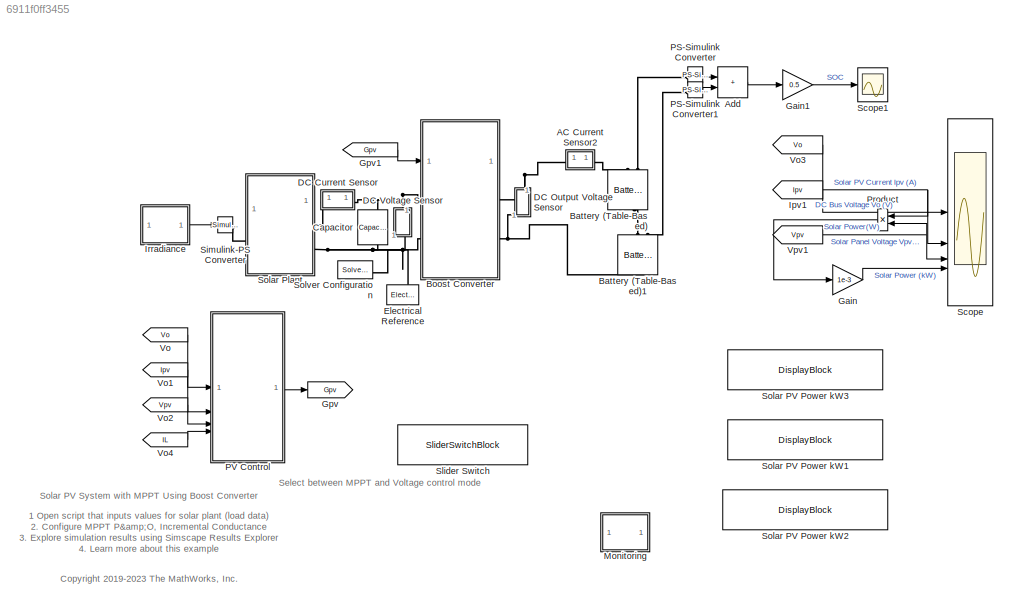
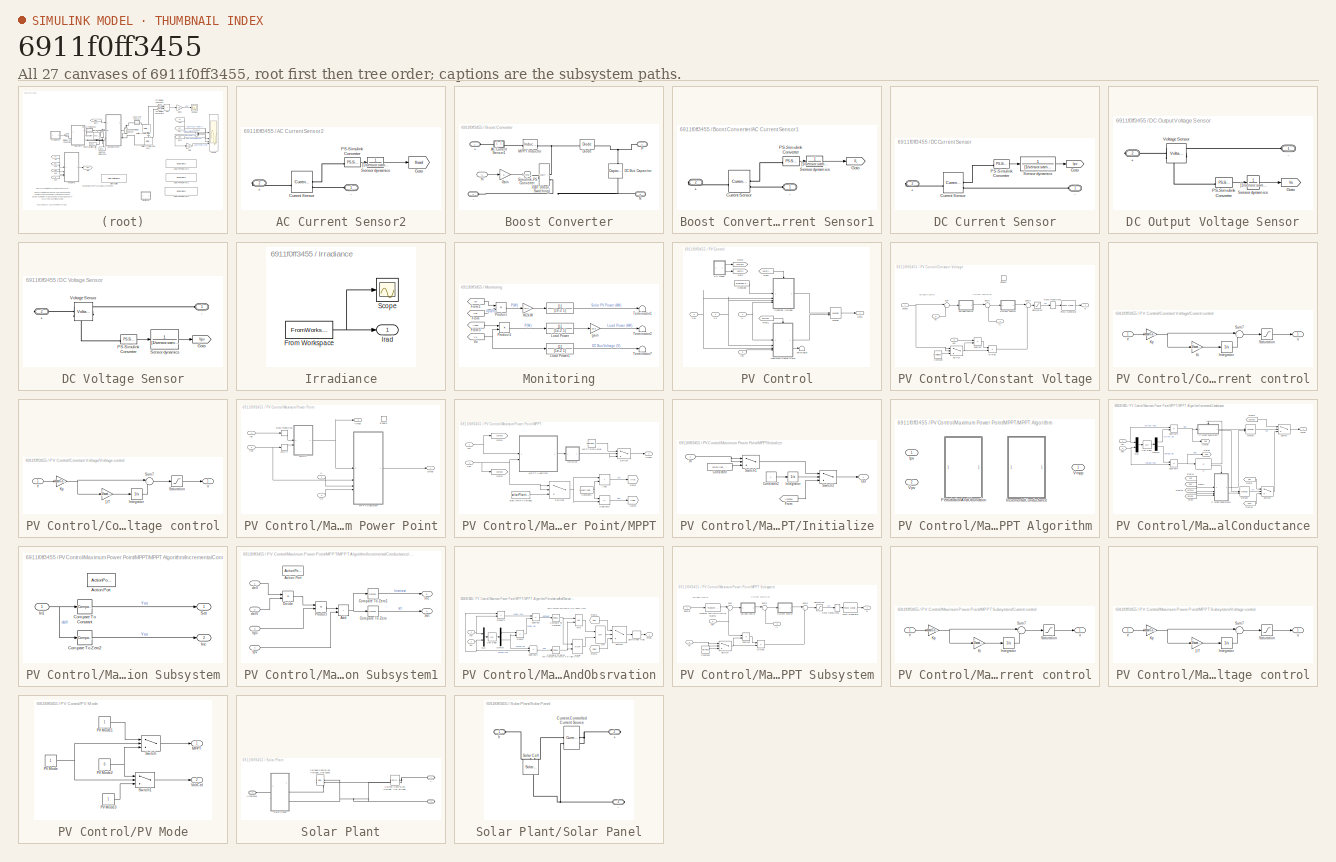
[diagram: thumbnail index - all 27 canvases of the model, root first then tree order]
MODEL slx_6911f0ff3455
KIND model
CONFIG AbsTol = 1e-3
CONFIG EnableMultiTasking = off
CONFIG FixedStep = auto
CONFIG MaxStep = 1/(10*solarPlant.converterSwitchingFrequency)
CONFIG MinStep = auto
CONFIG PreLoadFcn = run('SolarPVMPPTBoostData');
CONFIG RelTol = 1e-3
CONFIG SampleTimeConstraint = Unconstrained
CONFIG SolverName = ode23t
CONFIG StartTime = 0.0
CONFIG StopTime = t_sim2(end)
BLOCK [SubSystem] AC Current Sensor2
  NameLocation = top
BLOCK [PMIOPort] AC Current Sensor2/+
  Port = 2
  Side = Right
BLOCK [PMIOPort] AC Current Sensor2/-
  Side = Left
BLOCK [Reference] AC Current Sensor2/Current Sensor  REF=fl_lib/Electrical/Electrical Sensors/Current Sensor
  SourceBlock = fl_lib/Electrical/Electrical Sensors/Current Sensor
  SourceType = Current Sensor
BLOCK [Goto] AC Current Sensor2/Goto
  GotoTag = Iload
  TagVisibility = global
BLOCK [Reference] AC Current Sensor2/PS-Simulink Converter  REF=nesl_utility/PS-Simulink
Converter
  SourceBlock = nesl_utility/PS-Simulink\nConverter
  SourceType = PS-Simulink\nConverter
BLOCK [TransferFcn] AC Current Sensor2/Sensor dynamics
  Denominator = [1/sensor.samplingFreq 1]
  Numerator = 1
BLOCK [Sum] Add
  IconShape = rectangular
BLOCK [Reference] Battery (Table-Based)  REF=batteryecm_lib/Battery
(Table-Based)
  AttributesFormatString = Valence:U24_24XP
  LibrarySourceBlock = batt_lib/Cells/Battery\n(Table-Based)
  NameLocation = right
  SourceBlock = batteryecm_lib/Battery\n(Table-Based)
  SourceType = Battery\n(Table-Based)
BLOCK [Reference] Battery (Table-Based)1  REF=batteryecm_lib/Battery
(Table-Based)
  AttributesFormatString = Valence:U24_24XP
  LibrarySourceBlock = batt_lib/Cells/Battery\n(Table-Based)
  NameLocation = right
  SourceBlock = batteryecm_lib/Battery\n(Table-Based)
  SourceType = Battery\n(Table-Based)
BLOCK [SubSystem] Boost Converter
  VariantControl = boostCircuit == 1
BLOCK [PMIOPort] Boost Converter/+
  Side = Left
BLOCK [PMIOPort] Boost Converter/-
  Port = 4
  Side = Left
BLOCK [SubSystem] Boost Converter/AC Current Sensor1
  NameLocation = top
BLOCK [PMIOPort] Boost Converter/AC Current Sensor1/+
  Port = 2
  Side = Right
BLOCK [PMIOPort] Boost Converter/AC Current Sensor1/-
  Side = Left
BLOCK [Reference] Boost Converter/AC Current Sensor1/Current Sensor  REF=fl_lib/Electrical/Electrical Sensors/Current Sensor
  SourceBlock = fl_lib/Electrical/Electrical Sensors/Current Sensor
  SourceType = Current Sensor
BLOCK [Goto] Boost Converter/AC Current Sensor1/Goto
  GotoTag = IL
  TagVisibility = global
BLOCK [Reference] Boost Converter/AC Current Sensor1/PS-Simulink Converter  REF=nesl_utility/PS-Simulink
Converter
  SourceBlock = nesl_utility/PS-Simulink\nConverter
  SourceType = PS-Simulink\nConverter
BLOCK [TransferFcn] Boost Converter/AC Current Sensor1/Sensor dynamics
  Denominator = [1/sensor.samplingFreq 1]
  Numerator = 1
BLOCK [Reference] Boost Converter/DC Bus Capacitor  REF=fl_lib/Electrical/Electrical Elements/Capacitor
  NameLocation = left
  SourceBlock = fl_lib/Electrical/Electrical Elements/Capacitor
  SourceType = Capacitor
BLOCK [Reference] Boost Converter/Diode  REF=fl_lib/Electrical/Electrical Elements/Diode
  SourceBlock = fl_lib/Electrical/Electrical Elements/Diode
  SourceType = Diode
BLOCK [Gain] Boost Converter/Gain
  Gain = 5
BLOCK [Reference] Boost Converter/IGBT (Ideal, Switching)  REF=ee_lib/Semiconductors &
Converters/IGBT
(Ideal,
Switching)
  SourceBlock = ee_lib/Semiconductors &\nConverters/IGBT\n(Ideal,\nSwitching)
  SourceType = IGBT\n(Ideal,\nSwitching)
BLOCK [Reference] Boost Converter/MPPT Inductor  REF=ee_lib/Passive/Inductor
  SourceBlock = ee_lib/Passive/Inductor
  SourceType = Inductor
BLOCK [PMIOPort] Boost Converter/N
  Port = 3
  Side = Right
BLOCK [PMIOPort] Boost Converter/P
  Port = 2
  Side = Right
BLOCK [Reference] Boost Converter/Simulink-PS Converter  REF=nesl_utility/Simulink-PS
Converter
  SourceBlock = nesl_utility/Simulink-PS\nConverter
  SourceType = Simulink-PS\nConverter
BLOCK [Inport] Boost Converter/m
BLOCK [Reference] Capacitor  REF=fl_lib/Electrical/Electrical Elements/Capacitor
  NameLocation = left
  SourceBlock = fl_lib/Electrical/Electrical Elements/Capacitor
  SourceType = Capacitor
BLOCK [SubSystem] DC Current Sensor
BLOCK [PMIOPort] DC Current Sensor/+
  Port = 2
  Side = Right
BLOCK [PMIOPort] DC Current Sensor/-
  Side = Left
BLOCK [Reference] DC Current Sensor/Current Sensor  REF=fl_lib/Electrical/Electrical Sensors/Current Sensor
  SourceBlock = fl_lib/Electrical/Electrical Sensors/Current Sensor
  SourceType = Current Sensor
BLOCK [Goto] DC Current Sensor/Goto
  GotoTag = Ipv
  TagVisibility = global
BLOCK [Reference] DC Current Sensor/PS-Simulink Converter  REF=nesl_utility/PS-Simulink
Converter
  SourceBlock = nesl_utility/PS-Simulink\nConverter
  SourceType = PS-Simulink\nConverter
BLOCK [TransferFcn] DC Current Sensor/Sensor dynamics
  Denominator = [1/sensor.samplingFreq 1]
  Numerator = 1
BLOCK [SubSystem] DC Output Voltage Sensor
  NameLocation = left
BLOCK [PMIOPort] DC Output Voltage Sensor/+
  Port = 2
  Side = Right
BLOCK [PMIOPort] DC Output Voltage Sensor/-
  Side = Left
BLOCK [Goto] DC Output Voltage Sensor/Goto
  GotoTag = Vo
  TagVisibility = global
BLOCK [Reference] DC Output Voltage Sensor/PS-Simulink Converter  REF=nesl_utility/PS-Simulink
Converter
  SourceBlock = nesl_utility/PS-Simulink\nConverter
  SourceType = PS-Simulink\nConverter
BLOCK [TransferFcn] DC Output Voltage Sensor/Sensor dynamics
  Denominator = [1/sensor.samplingFreq 1]
  Numerator = 1
BLOCK [Reference] DC Output Voltage Sensor/Voltage Sensor  REF=fl_lib/Electrical/Electrical Sensors/Voltage Sensor
  SourceBlock = fl_lib/Electrical/Electrical Sensors/Voltage Sensor
  SourceType = Voltage Sensor
BLOCK [SubSystem] DC Voltage Sensor
  NameLocation = left
BLOCK [PMIOPort] DC Voltage Sensor/+
  Port = 2
  Side = Right
BLOCK [PMIOPort] DC Voltage Sensor/-
  Side = Left
BLOCK [Goto] DC Voltage Sensor/Goto
  GotoTag = Vpv
  TagVisibility = global
BLOCK [Reference] DC Voltage Sensor/PS-Simulink Converter  REF=nesl_utility/PS-Simulink
Converter
  SourceBlock = nesl_utility/PS-Simulink\nConverter
  SourceType = PS-Simulink\nConverter
BLOCK [TransferFcn] DC Voltage Sensor/Sensor dynamics
  Denominator = [1/sensor.samplingFreq 1]
  Numerator = 1
BLOCK [Reference] DC Voltage Sensor/Voltage Sensor  REF=fl_lib/Electrical/Electrical Sensors/Voltage Sensor
  SourceBlock = fl_lib/Electrical/Electrical Sensors/Voltage Sensor
  SourceType = Voltage Sensor
BLOCK [Reference] Electrical Reference  REF=fl_lib/Electrical/Electrical Elements/Electrical Reference
  NameLocation = left
  SourceBlock = fl_lib/Electrical/Electrical Elements/Electrical Reference
  SourceType = Electrical Reference
BLOCK [Gain] Gain
  Gain = 1e-3
BLOCK [Gain] Gain1
  Gain = 0.5
BLOCK [Goto] Gpv
  GotoTag = Gpv
  TagVisibility = global
BLOCK [From] Gpv1
  GotoTag = Gpv
  TagVisibility = global
BLOCK [From] Ipv1
  GotoTag = Ipv
  TagVisibility = global
BLOCK [SubSystem] Irradiance
BLOCK [FromWorkspace] Irradiance/From Workspace
  SampleTime = 0.01
  VariableName = irradiance_input
BLOCK [Outport] Irradiance/Irad
BLOCK [Scope] Irradiance/Scope
  ActiveDisplayYMaximum = 1117.4641717921102
  ActiveDisplayYMinimum = -124.16268575467888
  Floating = off
  GraphicalSettings = {"Style":{"BackgroundColor":[0.12941176470588237,0.12941176470588237,0.12941176470588237],"AxesColor":[0.07058823529411765,0.07058823529411765,0.07058823529411765],"LabelsColor":[0.8509803921568627,0.8509803921568627,0.8509803921568627],"PreserveColors":false,"Visible":[true],"LineStyle":["-"],"LineWidth":[1.5],"BarWidth":[0.9],"LineColor":["auto"],"LineFaceAlpha":[1],"LineEdgeAlpha":[1],"Marker":...<+2052ch>
  MultipleDisplayCache = [{"MaxYLimMag":1117.4641717921102,"MaxYLimReal":1117.4641717921102,"MinYLimMag":0,"MinYLimReal":-124.16268575467888,"PlotAsMagnitudePhase":false,"ShowGrid":true,"ShowLegend":false,"Title":"%<SignalLabel>","YLabel":""}]
  NumInputPorts = 1
  ScopeFrameLocation = window
  WasSavedAsWebScope = on
  WindowPosition = [676.000000,590.000000,608.000000,456.000000,]
BLOCK [SubSystem] Monitoring
BLOCK [TransferFcn] Monitoring/  
  Denominator = [1e-2 1]
BLOCK [From] Monitoring/From
  GotoTag = Vpv
  TagVisibility = global
BLOCK [From] Monitoring/From1
  GotoTag = Ipv
  TagVisibility = global
BLOCK [From] Monitoring/From3
  GotoTag = Iload
  TagVisibility = global
BLOCK [TransferFcn] Monitoring/Load Power
  Denominator = [1e-2 1]
BLOCK [TransferFcn] Monitoring/Load Power1
  Denominator = [1e-2 1]
BLOCK [Product] Monitoring/Product
BLOCK [Product] Monitoring/Product1
BLOCK [Terminator] Monitoring/Terminator1
BLOCK [Terminator] Monitoring/Terminator2
BLOCK [Terminator] Monitoring/Terminator7
BLOCK [From] Monitoring/Vo
  GotoTag = Vo
  TagVisibility = global
BLOCK [Gain] Monitoring/W2kW
  Gain = 1e-3
BLOCK [Gain] Monitoring/gain
  Gain = 1e-3
BLOCK [Reference] PS-Simulink Converter  REF=nesl_utility/PS-Simulink
Converter
  SourceBlock = nesl_utility/PS-Simulink\nConverter
  SourceType = PS-Simulink\nConverter
BLOCK [Reference] PS-Simulink Converter1  REF=nesl_utility/PS-Simulink
Converter
  SourceBlock = nesl_utility/PS-Simulink\nConverter
  SourceType = PS-Simulink\nConverter
BLOCK [SubSystem] PV Control
BLOCK [Constant] PV Control/Constant
  Value = dcVoltage.avgDCVoltage
BLOCK [SubSystem] PV Control/Constant Voltage
BLOCK [Constant] PV Control/Constant Voltage/Constant
  Value = dcVoltage.avgDCVoltage
BLOCK [SubSystem] PV Control/Constant Voltage/Current control
BLOCK [Integrator] PV Control/Constant Voltage/Current control/Integrator
  LimitOutput = on
  LowerSaturationLimit = -1.5
  UpperSaturationLimit = 1.5
BLOCK [Gain] PV Control/Constant Voltage/Current control/Ki
  Gain = 1/boostController.mppCurrentZeroTimeConst
BLOCK [Gain] PV Control/Constant Voltage/Current control/Kp
  Gain = boostController.mppCurrentGain
BLOCK [Saturate] PV Control/Constant Voltage/Current control/Saturation
  LowerLimit = -1.5
  UpperLimit = 1.5
BLOCK [Sum] PV Control/Constant Voltage/Current control/Sum7
  Inputs = |++
BLOCK [Inport] PV Control/Constant Voltage/Current control/e
BLOCK [Outport] PV Control/Constant Voltage/Current control/u
  VectorParamsAs1DForOutWhenUnconnected = off
BLOCK [Product] PV Control/Constant Voltage/Divide
  Inputs = */
BLOCK [EnablePort] PV Control/Constant Voltage/Enable
  StatesWhenEnabling = reset
BLOCK [Outport] PV Control/Constant Voltage/G
BLOCK [Inport] PV Control/Constant Voltage/IL
  NameLocation = top
  Port = 4
BLOCK [Reference] PV Control/Constant Voltage/PWM Generator  REF=eePwmGenerator/PWM Generator
  SourceBlock = eePwmGenerator/PWM Generator
  SourceType = PWM Generator
BLOCK [RateTransition] PV Control/Constant Voltage/Rate Transition1
  OutPortSampleTime = 1/(10*solarPlant.converterSwitchingFrequency)
BLOCK [Saturate] PV Control/Constant Voltage/Saturation
  LowerLimit = 0
  UpperLimit = 1
BLOCK [Sum] PV Control/Constant Voltage/Subtract
  IconShape = rectangular
  Inputs = +-
BLOCK [Sum] PV Control/Constant Voltage/Sum
  Inputs = |+-
BLOCK [Sum] PV Control/Constant Voltage/Sum2
  Inputs = |+-
BLOCK [Sum] PV Control/Constant Voltage/Sum3
  Inputs = |+-
BLOCK [Switch] PV Control/Constant Voltage/Switch
  Criteria = u2 > Threshold
  InputSameDT = off
  SaturateOnIntegerOverflow = off
  Threshold = dcVoltage.avgDCVoltage*0.7
BLOCK [Inport] PV Control/Constant Voltage/Vconst
BLOCK [Inport] PV Control/Constant Voltage/Vo 
  Port = 3
BLOCK [SubSystem] PV Control/Constant Voltage/Voltage control
BLOCK [Gain] PV Control/Constant Voltage/Voltage control/1//T
  Gain = 1/boostController.mppVoltageZeroTimeConst
BLOCK [Integrator] PV Control/Constant Voltage/Voltage control/Integrator
  LimitOutput = on
  LowerSaturationLimit = boostController.mppVoltageLoopMin
  UpperSaturationLimit = boostController.mppVoltageLoopMax
BLOCK [Gain] PV Control/Constant Voltage/Voltage control/Kp
  Gain = boostController.mppVoltageGain
BLOCK [Saturate] PV Control/Constant Voltage/Voltage control/Saturation
  LowerLimit = boostController.mppVoltageLoopMin
  UpperLimit = boostController.mppVoltageLoopMax
BLOCK [Sum] PV Control/Constant Voltage/Voltage control/Sum7
  Inputs = |++
BLOCK [Inport] PV Control/Constant Voltage/Voltage control/e
BLOCK [Outport] PV Control/Constant Voltage/Voltage control/u
  VectorParamsAs1DForOutWhenUnconnected = off
BLOCK [Inport] PV Control/Constant Voltage/Vpv
  Port = 2
BLOCK [From] PV Control/From
  GotoTag = VoltCtrl
BLOCK [From] PV Control/From1
  GotoTag = pvMPPT
BLOCK [Outport] PV Control/Gate
BLOCK [Goto] PV Control/Goto
  GotoTag = VoltCtrl
BLOCK [Goto] PV Control/Goto1
  GotoTag = pvMPPT
BLOCK [Inport] PV Control/IL
  Port = 4
BLOCK [Inport] PV Control/Ipv
  Port = 2
BLOCK [SubSystem] PV Control/Maximum Power Point
BLOCK [EnablePort] PV Control/Maximum Power Point/Enable
  StatesWhenEnabling = reset
BLOCK [Outport] PV Control/Maximum Power Point/Gmpp
BLOCK [Inport] PV Control/Maximum Power Point/IL 
BLOCK [Inport] PV Control/Maximum Power Point/Ipv
  Port = 4
BLOCK [SubSystem] PV Control/Maximum Power Point/MPPT
BLOCK [SubSystem] PV Control/Maximum Power Point/MPPT Subsystem
  TreatAsAtomicUnit = on
BLOCK [Constant] PV Control/Maximum Power Point/MPPT Subsystem/Constant
  Value = solarPlant.startMPPTValue
BLOCK [SubSystem] PV Control/Maximum Power Point/MPPT Subsystem/Current control
BLOCK [Integrator] PV Control/Maximum Power Point/MPPT Subsystem/Current control/Integrator
  InitialCondition = 1
  LimitOutput = on
  LowerSaturationLimit = -0.5
  UpperSaturationLimit = 1
BLOCK [Gain] PV Control/Maximum Power Point/MPPT Subsystem/Current control/Ki
  Gain = 1/boostController.mppCurrentZeroTimeConst
BLOCK [Gain] PV Control/Maximum Power Point/MPPT Subsystem/Current control/Kp
  Gain = boostController.mppCurrentGain
BLOCK [Saturate] PV Control/Maximum Power Point/MPPT Subsystem/Current control/Saturation
  LowerLimit = -0.3
  UpperLimit = 1
BLOCK [Sum] PV Control/Maximum Power Point/MPPT Subsystem/Current control/Sum7
  Inputs = |++
BLOCK [Inport] PV Control/Maximum Power Point/MPPT Subsystem/Current control/e
BLOCK [Outport] PV Control/Maximum Power Point/MPPT Subsystem/Current control/u
  VectorParamsAs1DForOutWhenUnconnected = off
BLOCK [Product] PV Control/Maximum Power Point/MPPT Subsystem/Divide
  Inputs = */
BLOCK [Outport] PV Control/Maximum Power Point/MPPT Subsystem/G
BLOCK [Inport] PV Control/Maximum Power Point/MPPT Subsystem/IL
  NameLocation = top
  Port = 3
BLOCK [Reference] PV Control/Maximum Power Point/MPPT Subsystem/PWM Generator  REF=eePwmGenerator/PWM Generator
  SourceBlock = eePwmGenerator/PWM Generator
  SourceType = PWM Generator
BLOCK [RateTransition] PV Control/Maximum Power Point/MPPT Subsystem/Rate Transition1
  OutPortSampleTime = 1/(10*solarPlant.converterSwitchingFrequency)
BLOCK [Saturate] PV Control/Maximum Power Point/MPPT Subsystem/Saturation
  LowerLimit = 0
  UpperLimit = 1
BLOCK [Sum] PV Control/Maximum Power Point/MPPT Subsystem/Subtract
  IconShape = rectangular
  Inputs = -+
BLOCK [Sum] PV Control/Maximum Power Point/MPPT Subsystem/Sum
  Inputs = |+-
BLOCK [Sum] PV Control/Maximum Power Point/MPPT Subsystem/Sum2
  Inputs = |--
BLOCK [Sum] PV Control/Maximum Power Point/MPPT Subsystem/Sum3
  Inputs = |++
BLOCK [Switch] PV Control/Maximum Power Point/MPPT Subsystem/Switch
  Criteria = u2 > Threshold
  InputSameDT = off
  SaturateOnIntegerOverflow = off
  Threshold = dcVoltage.avgDCVoltage*0.7
BLOCK [Reference] PV Control/Maximum Power Point/MPPT Subsystem/Transfer Fcn (with initial states)  REF=simulink_extras/Additional
Linear/Transfer Fcn
(with initial states)
  SourceBlock = simulink_extras/Additional\nLinear/Transfer Fcn\n(with initial states)
  SourceType = Transfer Function with Initial States
BLOCK [Inport] PV Control/Maximum Power Point/MPPT Subsystem/Vo 
  Port = 4
BLOCK [SubSystem] PV Control/Maximum Power Point/MPPT Subsystem/Voltage control
BLOCK [Gain] PV Control/Maximum Power Point/MPPT Subsystem/Voltage control/1//T
  Gain = 1/boostController.mppVoltageZeroTimeConst
BLOCK [Integrator] PV Control/Maximum Power Point/MPPT Subsystem/Voltage control/Integrator
  LimitOutput = on
  LowerSaturationLimit = boostController.mppVoltageLoopMin
  UpperSaturationLimit = boostController.mppVoltageLoopMax
BLOCK [Gain] PV Control/Maximum Power Point/MPPT Subsystem/Voltage control/Kp
  Gain = boostController.mppVoltageGain
BLOCK [Saturate] PV Control/Maximum Power Point/MPPT Subsystem/Voltage control/Saturation
  LowerLimit = boostController.mppVoltageLoopMin
  UpperLimit = boostController.mppVoltageLoopMax
BLOCK [Sum] PV Control/Maximum Power Point/MPPT Subsystem/Voltage control/Sum7
  Inputs = |++
BLOCK [Inport] PV Control/Maximum Power Point/MPPT Subsystem/Voltage control/e
BLOCK [Outport] PV Control/Maximum Power Point/MPPT Subsystem/Voltage control/u
  VectorParamsAs1DForOutWhenUnconnected = off
BLOCK [Inport] PV Control/Maximum Power Point/MPPT Subsystem/Vpv
  Port = 2
BLOCK [Inport] PV Control/Maximum Power Point/MPPT Subsystem/VpvRef
BLOCK [Sum] PV Control/Maximum Power Point/MPPT/Add
  IconShape = rectangular
BLOCK [Constant] PV Control/Maximum Power Point/MPPT/Constant1
  Value = solarPlant.voltMPPT
BLOCK [Goto] PV Control/Maximum Power Point/MPPT/Goto1
  GotoTag = Vinc
  TagVisibility = global
BLOCK [Goto] PV Control/Maximum Power Point/MPPT/Goto2
  GotoTag = Vdec
  TagVisibility = global
BLOCK [Goto] PV Control/Maximum Power Point/MPPT/Goto3
  GotoTag = Vpvnow
  TagVisibility = global
BLOCK [Goto] PV Control/Maximum Power Point/MPPT/Goto4
  GotoTag = Ipvnow
  TagVisibility = global
BLOCK [SubSystem] PV Control/Maximum Power Point/MPPT/Initialize
BLOCK [Constant] PV Control/Maximum Power Point/MPPT/Initialize/Constant
  Value = solarPlant.startMPPTValue
BLOCK [Constant] PV Control/Maximum Power Point/MPPT/Initialize/Constant2
BLOCK [From] PV Control/Maximum Power Point/MPPT/Initialize/From
  GotoTag = Vpvnow
  TagVisibility = global
BLOCK [Inport] PV Control/Maximum Power Point/MPPT/Initialize/In
BLOCK [Integrator] PV Control/Maximum Power Point/MPPT/Initialize/Integrator
BLOCK [Outport] PV Control/Maximum Power Point/MPPT/Initialize/Out
BLOCK [Switch] PV Control/Maximum Power Point/MPPT/Initialize/Switch1
  Criteria = u2 > Threshold
  InputSameDT = off
  SaturateOnIntegerOverflow = off
  Threshold = solarPlant.startMPPTValue
BLOCK [Switch] PV Control/Maximum Power Point/MPPT/Initialize/Switch2
  Criteria = u2 > Threshold
  InputSameDT = off
  SaturateOnIntegerOverflow = off
  Threshold = solarPlant.timeMPPT
BLOCK [Inport] PV Control/Maximum Power Point/MPPT/Ipv
BLOCK [SubSystem] PV Control/Maximum Power Point/MPPT/MPPT Algorithm
  Variant = on
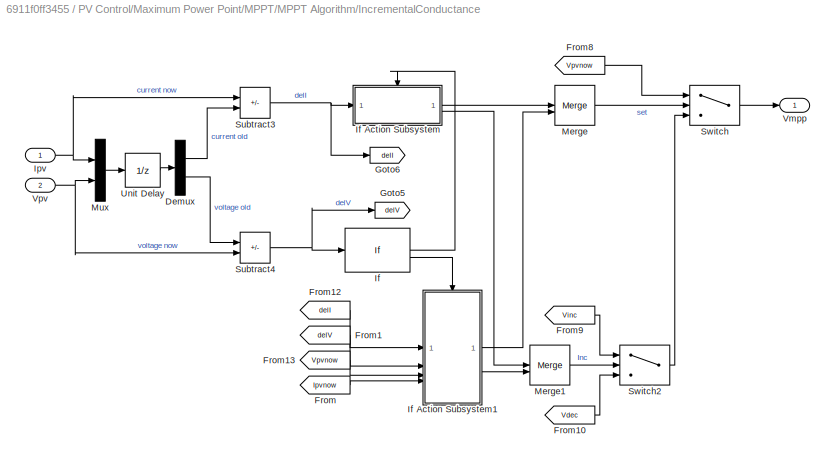
BLOCK [SubSystem] PV Control/Maximum Power Point/MPPT/MPPT Algorithm/IncrementalConductance
  VariantControl = incrementalConductance
BLOCK [Demux] PV Control/Maximum Power Point/MPPT/MPPT Algorithm/IncrementalConductance/Demux
  Outputs = 2
BLOCK [From] PV Control/Maximum Power Point/MPPT/MPPT Algorithm/IncrementalConductance/From
  GotoTag = Ipvnow
  TagVisibility = global
BLOCK [From] PV Control/Maximum Power Point/MPPT/MPPT Algorithm/IncrementalConductance/From1
  GotoTag = delV
BLOCK [From] PV Control/Maximum Power Point/MPPT/MPPT Algorithm/IncrementalConductance/From10
  GotoTag = Vdec
  TagVisibility = global
BLOCK [From] PV Control/Maximum Power Point/MPPT/MPPT Algorithm/IncrementalConductance/From12
  GotoTag = delI
BLOCK [From] PV Control/Maximum Power Point/MPPT/MPPT Algorithm/IncrementalConductance/From13
  GotoTag = Vpvnow
  TagVisibility = global
BLOCK [From] PV Control/Maximum Power Point/MPPT/MPPT Algorithm/IncrementalConductance/From8
  GotoTag = Vpvnow
  TagVisibility = global
BLOCK [From] PV Control/Maximum Power Point/MPPT/MPPT Algorithm/IncrementalConductance/From9
  GotoTag = Vinc
  TagVisibility = global
BLOCK [Goto] PV Control/Maximum Power Point/MPPT/MPPT Algorithm/IncrementalConductance/Goto5
  GotoTag = delV
BLOCK [Goto] PV Control/Maximum Power Point/MPPT/MPPT Algorithm/IncrementalConductance/Goto6
  GotoTag = delI
BLOCK [If] PV Control/Maximum Power Point/MPPT/MPPT Algorithm/IncrementalConductance/If
  IfExpression = u1 == 0
BLOCK [SubSystem] PV Control/Maximum Power Point/MPPT/MPPT Algorithm/IncrementalConductance/If Action Subsystem
  TreatAsAtomicUnit = on
BLOCK [ActionPort] PV Control/Maximum Power Point/MPPT/MPPT Algorithm/IncrementalConductance/If Action Subsystem/Action Port
  ActionPortLabel = if(u1 == 0)
BLOCK [Reference] PV Control/Maximum Power Point/MPPT/MPPT Algorithm/IncrementalConductance/If Action Subsystem/Compare To Constant  REF=simulink/Logic and Bit
Operations/Compare
To Constant
  SourceBlock = simulink/Logic and Bit\nOperations/Compare\nTo Constant
  SourceType = Compare To Constant
BLOCK [Reference] PV Control/Maximum Power Point/MPPT/MPPT Algorithm/IncrementalConductance/If Action Subsystem/Compare To Zero2  REF=simulink/Logic and Bit
Operations/Compare
To Zero
  SourceBlock = simulink/Logic and Bit\nOperations/Compare\nTo Zero
  SourceType = Compare To Zero
BLOCK [Inport] PV Control/Maximum Power Point/MPPT/MPPT Algorithm/IncrementalConductance/If Action Subsystem/In1
BLOCK [Outport] PV Control/Maximum Power Point/MPPT/MPPT Algorithm/IncrementalConductance/If Action Subsystem/Inc
  Port = 2
  VectorParamsAs1DForOutWhenUnconnected = off
BLOCK [Outport] PV Control/Maximum Power Point/MPPT/MPPT Algorithm/IncrementalConductance/If Action Subsystem/Set
  VectorParamsAs1DForOutWhenUnconnected = off
BLOCK [SubSystem] PV Control/Maximum Power Point/MPPT/MPPT Algorithm/IncrementalConductance/If Action Subsystem1
  TreatAsAtomicUnit = on
BLOCK [ActionPort] PV Control/Maximum Power Point/MPPT/MPPT Algorithm/IncrementalConductance/If Action Subsystem1/Action Port
  ActionPortLabel = else
BLOCK [Sum] PV Control/Maximum Power Point/MPPT/MPPT Algorithm/IncrementalConductance/If Action Subsystem1/Add
  IconShape = rectangular
BLOCK [Reference] PV Control/Maximum Power Point/MPPT/MPPT Algorithm/IncrementalConductance/If Action Subsystem1/Compare To Zero  REF=simulink/Logic and Bit
Operations/Compare
To Zero
  SourceBlock = simulink/Logic and Bit\nOperations/Compare\nTo Zero
  SourceType = Compare To Zero
BLOCK [Reference] PV Control/Maximum Power Point/MPPT/MPPT Algorithm/IncrementalConductance/If Action Subsystem1/Compare To Zero1  REF=simulink/Logic and Bit
Operations/Compare
To Zero
  SourceBlock = simulink/Logic and Bit\nOperations/Compare\nTo Zero
  SourceType = Compare To Zero
BLOCK [Product] PV Control/Maximum Power Point/MPPT/MPPT Algorithm/IncrementalConductance/If Action Subsystem1/Divide
  Inputs = */
BLOCK [Outport] PV Control/Maximum Power Point/MPPT/MPPT Algorithm/IncrementalConductance/If Action Subsystem1/Inc
  Port = 2
  VectorParamsAs1DForOutWhenUnconnected = off
BLOCK [Inport] PV Control/Maximum Power Point/MPPT/MPPT Algorithm/IncrementalConductance/If Action Subsystem1/Ipv
  Port = 4
BLOCK [Product] PV Control/Maximum Power Point/MPPT/MPPT Algorithm/IncrementalConductance/If Action Subsystem1/Product
BLOCK [Outport] PV Control/Maximum Power Point/MPPT/MPPT Algorithm/IncrementalConductance/If Action Subsystem1/Set
  VectorParamsAs1DForOutWhenUnconnected = off
BLOCK [Inport] PV Control/Maximum Power Point/MPPT/MPPT Algorithm/IncrementalConductance/If Action Subsystem1/Vpv
  Port = 3
BLOCK [Inport] PV Control/Maximum Power Point/MPPT/MPPT Algorithm/IncrementalConductance/If Action Subsystem1/delI
BLOCK [Inport] PV Control/Maximum Power Point/MPPT/MPPT Algorithm/IncrementalConductance/If Action Subsystem1/delV
  Port = 2
BLOCK [Inport] PV Control/Maximum Power Point/MPPT/MPPT Algorithm/IncrementalConductance/Ipv
BLOCK [Merge] PV Control/Maximum Power Point/MPPT/MPPT Algorithm/IncrementalConductance/Merge
BLOCK [Merge] PV Control/Maximum Power Point/MPPT/MPPT Algorithm/IncrementalConductance/Merge1
BLOCK [Mux] PV Control/Maximum Power Point/MPPT/MPPT Algorithm/IncrementalConductance/Mux
  DisplayOption = bar
  Inputs = 2
BLOCK [Sum] PV Control/Maximum Power Point/MPPT/MPPT Algorithm/IncrementalConductance/Subtract3
  IconShape = rectangular
  Inputs = +-
BLOCK [Sum] PV Control/Maximum Power Point/MPPT/MPPT Algorithm/IncrementalConductance/Subtract4
  IconShape = rectangular
  Inputs = -+
BLOCK [Switch] PV Control/Maximum Power Point/MPPT/MPPT Algorithm/IncrementalConductance/Switch
  Criteria = u2 > Threshold
  InputSameDT = off
  SaturateOnIntegerOverflow = off
BLOCK [Switch] PV Control/Maximum Power Point/MPPT/MPPT Algorithm/IncrementalConductance/Switch2
  Criteria = u2 > Threshold
  InputSameDT = off
  SaturateOnIntegerOverflow = off
BLOCK [UnitDelay] PV Control/Maximum Power Point/MPPT/MPPT Algorithm/IncrementalConductance/Unit Delay
  HasFrameUpgradeWarning = on
  InitialCondition = solarPlant.startMPPTValue
  SampleTime = solarPlant.timeMPPT
BLOCK [Outport] PV Control/Maximum Power Point/MPPT/MPPT Algorithm/IncrementalConductance/Vmpp
  VectorParamsAs1DForOutWhenUnconnected = off
BLOCK [Inport] PV Control/Maximum Power Point/MPPT/MPPT Algorithm/IncrementalConductance/Vpv
  Port = 2
BLOCK [Inport] PV Control/Maximum Power Point/MPPT/MPPT Algorithm/Ipv
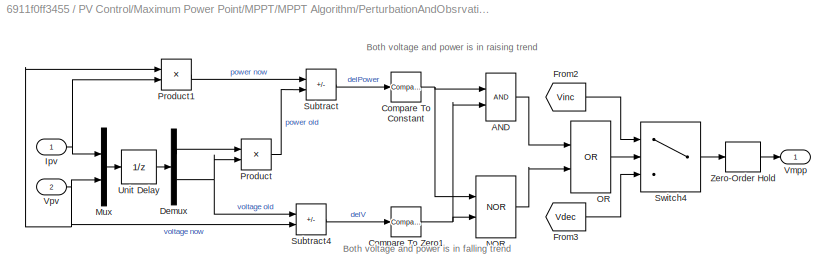
BLOCK [SubSystem] PV Control/Maximum Power Point/MPPT/MPPT Algorithm/PerturbationAndObsrvation
  VariantControl = perturbationAndObservation
BLOCK [Logic] PV Control/Maximum Power Point/MPPT/MPPT Algorithm/PerturbationAndObsrvation/AND
  AllPortsSameDT = off
  IconShape = distinctive
  OutDataTypeStr = boolean
BLOCK [Reference] PV Control/Maximum Power Point/MPPT/MPPT Algorithm/PerturbationAndObsrvation/Compare To Constant  REF=simulink/Logic and Bit
Operations/Compare
To Constant
  SourceBlock = simulink/Logic and Bit\nOperations/Compare\nTo Constant
  SourceType = Compare To Constant
BLOCK [Reference] PV Control/Maximum Power Point/MPPT/MPPT Algorithm/PerturbationAndObsrvation/Compare To Zero1  REF=simulink/Logic and Bit
Operations/Compare
To Zero
  SourceBlock = simulink/Logic and Bit\nOperations/Compare\nTo Zero
  SourceType = Compare To Zero
BLOCK [Demux] PV Control/Maximum Power Point/MPPT/MPPT Algorithm/PerturbationAndObsrvation/Demux
  Outputs = 2
BLOCK [From] PV Control/Maximum Power Point/MPPT/MPPT Algorithm/PerturbationAndObsrvation/From2
  GotoTag = Vinc
  TagVisibility = global
BLOCK [From] PV Control/Maximum Power Point/MPPT/MPPT Algorithm/PerturbationAndObsrvation/From3
  GotoTag = Vdec
  TagVisibility = global
BLOCK [Inport] PV Control/Maximum Power Point/MPPT/MPPT Algorithm/PerturbationAndObsrvation/Ipv
BLOCK [Mux] PV Control/Maximum Power Point/MPPT/MPPT Algorithm/PerturbationAndObsrvation/Mux
  DisplayOption = bar
  Inputs = 2
BLOCK [Logic] PV Control/Maximum Power Point/MPPT/MPPT Algorithm/PerturbationAndObsrvation/NOR
  AllPortsSameDT = off
  IconShape = distinctive
  Operator = NOR
  OutDataTypeStr = boolean
BLOCK [Logic] PV Control/Maximum Power Point/MPPT/MPPT Algorithm/PerturbationAndObsrvation/OR
  AllPortsSameDT = off
  IconShape = distinctive
  Operator = OR
  OutDataTypeStr = boolean
BLOCK [Product] PV Control/Maximum Power Point/MPPT/MPPT Algorithm/PerturbationAndObsrvation/Product
BLOCK [Product] PV Control/Maximum Power Point/MPPT/MPPT Algorithm/PerturbationAndObsrvation/Product1
BLOCK [Sum] PV Control/Maximum Power Point/MPPT/MPPT Algorithm/PerturbationAndObsrvation/Subtract
  IconShape = rectangular
  Inputs = +-
BLOCK [Sum] PV Control/Maximum Power Point/MPPT/MPPT Algorithm/PerturbationAndObsrvation/Subtract4
  IconShape = rectangular
  Inputs = -+
BLOCK [Switch] PV Control/Maximum Power Point/MPPT/MPPT Algorithm/PerturbationAndObsrvation/Switch4
  Criteria = u2 ~= 0
  InputSameDT = off
  SaturateOnIntegerOverflow = off
BLOCK [UnitDelay] PV Control/Maximum Power Point/MPPT/MPPT Algorithm/PerturbationAndObsrvation/Unit Delay
  HasFrameUpgradeWarning = on
  InitialCondition = solarPlant.startMPPTValue
  SampleTime = solarPlant.timeMPPT
BLOCK [Outport] PV Control/Maximum Power Point/MPPT/MPPT Algorithm/PerturbationAndObsrvation/Vmpp
  NameLocation = top
  VectorParamsAs1DForOutWhenUnconnected = off
BLOCK [Inport] PV Control/Maximum Power Point/MPPT/MPPT Algorithm/PerturbationAndObsrvation/Vpv
  Port = 2
BLOCK [ZeroOrderHold] PV Control/Maximum Power Point/MPPT/MPPT Algorithm/PerturbationAndObsrvation/Zero-Order Hold
  SampleTime = solarPlant.timeMPPT
BLOCK [Outport] PV Control/Maximum Power Point/MPPT/MPPT Algorithm/Vmpp
  VectorParamsAs1DForOutWhenUnconnected = off
BLOCK [Inport] PV Control/Maximum Power Point/MPPT/MPPT Algorithm/Vpv
  Port = 2
BLOCK [Constant] PV Control/Maximum Power Point/MPPT/MPPT End Value
  Value = solarPlant.endMPPTValue
BLOCK [Sum] PV Control/Maximum Power Point/MPPT/Subtract5
  IconShape = rectangular
  Inputs = -+
BLOCK [Switch] PV Control/Maximum Power Point/MPPT/Switch
  InputSameDT = off
  SaturateOnIntegerOverflow = off
  Threshold = solarPlant.endMPPTValue
BLOCK [Switch] PV Control/Maximum Power Point/MPPT/Switch5
  Criteria = u2 > Threshold
  InputSameDT = off
  SaturateOnIntegerOverflow = off
  Threshold = solarPlant.startMPPTValue
BLOCK [Outport] PV Control/Maximum Power Point/MPPT/Vmpp
  NameLocation = top
  VectorParamsAs1DForOutWhenUnconnected = off
BLOCK [Inport] PV Control/Maximum Power Point/MPPT/Vpv
  Port = 2
BLOCK [Constant] PV Control/Maximum Power Point/MPPT/start MPPT Voltage
  Value = solarPlant.startMPPTValue
BLOCK [RateTransition] PV Control/Maximum Power Point/Rate Transition
  OutPortSampleTime = solarPlant.timeMPPT
BLOCK [Outport] PV Control/Maximum Power Point/Vmpp
  Port = 2
BLOCK [Inport] PV Control/Maximum Power Point/Vo 
  Port = 2
BLOCK [Inport] PV Control/Maximum Power Point/Vpv
  Port = 3
BLOCK [ZeroOrderHold] PV Control/Maximum Power Point/ZOH//4
  SampleTime = solarPlant.timeMPPT
BLOCK [Merge] PV Control/Merge
BLOCK [SubSystem] PV Control/PV Mode
BLOCK [Outport] PV Control/PV Mode/MPPT
BLOCK [Constant] PV Control/PV Mode/PV Mode
BLOCK [Constant] PV Control/PV Mode/PV Mode1
BLOCK [Constant] PV Control/PV Mode/PV Mode2
  Value = 0
BLOCK [Constant] PV Control/PV Mode/PV Mode3
BLOCK [Switch] PV Control/PV Mode/Switch
  Criteria = u2 > Threshold
  InputSameDT = off
  SaturateOnIntegerOverflow = off
  Threshold = 0.5
BLOCK [Switch] PV Control/PV Mode/Switch1
  Criteria = u2 > Threshold
  InputSameDT = off
  SaturateOnIntegerOverflow = off
  Threshold = 0.5
BLOCK [Outport] PV Control/PV Mode/VoltCtrl
  Port = 2
BLOCK [Terminator] PV Control/Terminator
BLOCK [Inport] PV Control/Vo
BLOCK [Inport] PV Control/Vpv
  Port = 3
BLOCK [Product] Product
  NameLocation = top
BLOCK [Scope] Scope
  ActiveDisplayYMaximum = 59.722588730570259
  ActiveDisplayYMinimum = -6.6358431922855825
  DataLoggingVariableName = ScopeData1
  Floating = off
  GraphicalSettings = {"Style":{"BackgroundColor":[0.12941176470588237,0.12941176470588237,0.12941176470588237],"AxesColor":[0.07058823529411765,0.07058823529411765,0.07058823529411765],"LabelsColor":[0.8509803921568627,0.8509803921568627,0.8509803921568627],"PreserveColors":false,"Visible":[true,true,true,true],"LineStyle":["-","-","-","-"],"LineWidth":[1.5,1.5,1.5,1.5],"BarWidth":[0.9,0.9,0.9,0.9],"LineColor":["auto"...<+3738ch>
  LayoutDimensionsString = [4 1]
  MultipleDisplayCache = [{"MaxYLimMag":59.722588730570259,"MaxYLimReal":59.722588730570259,"MinYLimMag":0,"MinYLimReal":-6.6358431922855825,"PlotAsMagnitudePhase":false,"ShowGrid":true,"ShowLegend":false,"Title":"%<SignalLabel>","YLabel":""},{"MaxYLimMag":31.66766732835141,"MaxYLimReal":31.66766732835141,"MinYLimMag":0,"MinYLimReal":-9.1172789757348109,"PlotAsMagnitudePhase":false,"ShowGrid":true,"ShowLegend":false,"Titl...<+468ch>
  NumInputPorts = 4
  ScopeFrameLocation = window
  TimeSpan = t_sim2(end)
  WasSavedAsWebScope = on
  WindowPosition = [843.000000,272.000000,1177.000000,939.000000,]
BLOCK [Scope] Scope1
  ActiveDisplayYMaximum = 0.69293859438410943
  ActiveDisplayYMinimum = 0.14517600353103338
  DataLoggingSaveFormat = Structure
  DataLoggingVariableName = SOC
  Floating = off
  GraphicalSettings = {"Style":{"BackgroundColor":[0.12941176470588237,0.12941176470588237,0.12941176470588237],"AxesColor":[0.07058823529411765,0.07058823529411765,0.07058823529411765],"LabelsColor":[0.8509803921568627,0.8509803921568627,0.8509803921568627],"PreserveColors":false,"Visible":[true],"LineStyle":["-"],"LineWidth":[1.5],"BarWidth":[0.9],"LineColor":["auto"],"LineFaceAlpha":[1],"LineEdgeAlpha":[1],"Marker":...<+2066ch>
  LayoutDimensionsString = [1,1]
  MultipleDisplayCache = [{"MaxYLimMag":0.69293859438410943,"MaxYLimReal":0.69293859438410943,"MinYLimMag":0.14517600353103338,"MinYLimReal":0.14517600353103338,"PlotAsMagnitudePhase":false,"ShowGrid":true,"ShowLegend":false,"Title":"%<SignalLabel>","YLabel":""}]
  NumInputPorts = 1
  ScopeFrameLocation = window
  WasSavedAsWebScope = on
  WindowPosition = [787.000000,381.000000,721.000000,589.000000,]
BLOCK [Reference] Simulink-PS Converter  REF=nesl_utility/Simulink-PS
Converter
  SourceBlock = nesl_utility/Simulink-PS\nConverter
  SourceType = Simulink-PS\nConverter
BLOCK [SliderSwitchBlock] Slider Switch
BLOCK [DisplayBlock] Solar PV Power kW1
  GridColor = [0.502, 0.502, 0.502]
  Transparency = 1
BLOCK [DisplayBlock] Solar PV Power kW2
  GridColor = [0.502, 0.502, 0.502]
  Transparency = 1
BLOCK [DisplayBlock] Solar PV Power kW3
  GridColor = [0.502, 0.502, 0.502]
  Transparency = 1
BLOCK [SubSystem] Solar Plant
BLOCK [PMIOPort] Solar Plant/+
  Side = Right
BLOCK [PMIOPort] Solar Plant/-
  Port = 3
  Side = Right
BLOCK [Reference] Solar Plant/Current-Controlled Current Source- Scale panel current to Np parallel strings  REF=fl_lib/Electrical/Electrical Sources/Current-Controlled
Current Source
  SourceBlock = fl_lib/Electrical/Electrical Sources/Current-Controlled\nCurrent Source
  SourceType = Current-Controlled\nCurrent Source
BLOCK [PMIOPort] Solar Plant/Irradiance
  Port = 2
  Side = Left
BLOCK [SubSystem] Solar Plant/Solar Panel
BLOCK [PMIOPort] Solar Plant/Solar Panel/+
  Port = 2
  Side = Right
BLOCK [PMIOPort] Solar Plant/Solar Panel/-
  Port = 3
  Side = Right
BLOCK [Reference] Solar Plant/Solar Panel/Current-Controlled Current Source  REF=fl_lib/Electrical/Electrical Sources/Current-Controlled
Current Source
  SourceBlock = fl_lib/Electrical/Electrical Sources/Current-Controlled\nCurrent Source
  SourceType = Current-Controlled\nCurrent Source
BLOCK [PMIOPort] Solar Plant/Solar Panel/Ir
  Side = Left
BLOCK [Reference] Solar Plant/Solar Panel/Solar Cell  REF=ee_lib/Sources/Solar Cell
  NameLocation = left
  SourceBlock = ee_lib/Sources/Solar Cell
  SourceType = Solar Cell
BLOCK [Reference] Solar Plant/Voltage-Controlled Voltage Source - Scale panel voltage to Ns series panel  REF=fl_lib/Electrical/Electrical Sources/Voltage-Controlled
Voltage Source
  SourceBlock = fl_lib/Electrical/Electrical Sources/Voltage-Controlled\nVoltage Source
  SourceType = Voltage-Controlled\nVoltage Source
BLOCK [Reference] Solver Configuration  REF=nesl_utility/Solver
Configuration
  SourceBlock = nesl_utility/Solver\nConfiguration
  SourceType = Solver\nConfiguration
BLOCK [From] Vo
  GotoTag = Vo
  TagVisibility = global
BLOCK [From] Vo1
  GotoTag = Ipv
  TagVisibility = global
BLOCK [From] Vo2
  GotoTag = Vpv
  TagVisibility = global
BLOCK [From] Vo3
  GotoTag = Vo
  TagVisibility = global
BLOCK [From] Vo4
  GotoTag = IL
  TagVisibility = global
BLOCK [From] Vpv1
  GotoTag = Vpv
  TagVisibility = global
ANNOTATION (root): 1 Open script that inputs values for solar plant ( load data ) 2. Configure MPPT P&O , Incremental Conductance 3. Explore simulation results using Simscape Results Explorer 4. Learn more about this example
ANNOTATION (root): <copyright redacted>
ANNOTATION (root): Select between MPPT and Voltage control mode
ANNOTATION (root): Solar PV System with MPPT Using Boost Converter
ANNOTATION PV Control/Constant Voltage: Current controller
ANNOTATION PV Control/Constant Voltage: Voltage Control
ANNOTATION PV Control/Maximum Power Point/MPPT Subsystem: Current controller
ANNOTATION PV Control/Maximum Power Point/MPPT Subsystem: Voltage Control
ANNOTATION PV Control/Maximum Power Point/MPPT/MPPT Algorithm/PerturbationAndObsrvation: Both voltage and power is in falling trend
ANNOTATION PV Control/Maximum Power Point/MPPT/MPPT Algorithm/PerturbationAndObsrvation: Both voltage and power is in raising trend
LINE AC Current Sensor2/PS-Simulink Converter:1 -> AC Current Sensor2/Sensor dynamics:1
LINE AC Current Sensor2/Sensor dynamics:1 -> AC Current Sensor2/Goto:1
LINE Add:1 -> Gain1:1
LINE Boost Converter/AC Current Sensor1/PS-Simulink Converter:1 -> Boost Converter/AC Current Sensor1/Sensor dynamics:1
LINE Boost Converter/AC Current Sensor1/Sensor dynamics:1 -> Boost Converter/AC Current Sensor1/Goto:1
LINE Boost Converter/Gain:1 -> Boost Converter/Simulink-PS Converter:1
LINE Boost Converter/m:1 -> Boost Converter/Gain:1
LINE DC Current Sensor/PS-Simulink Converter:1 -> DC Current Sensor/Sensor dynamics:1
LINE DC Current Sensor/Sensor dynamics:1 -> DC Current Sensor/Goto:1
LINE DC Output Voltage Sensor/PS-Simulink Converter:1 -> DC Output Voltage Sensor/Sensor dynamics:1
LINE DC Output Voltage Sensor/Sensor dynamics:1 -> DC Output Voltage Sensor/Goto:1
LINE DC Voltage Sensor/PS-Simulink Converter:1 -> DC Voltage Sensor/Sensor dynamics:1
LINE DC Voltage Sensor/Sensor dynamics:1 -> DC Voltage Sensor/Goto:1
LINE Gain1:1 -> Scope1:1
LINE Gain:1 -> Scope:4
LINE Gpv1:1 -> Boost Converter:1
NET Ipv1:1 -> Product:1, Scope:2
NET Irradiance/From Workspace:1 -> Irradiance/Irad:1, Irradiance/Scope:1
LINE Irradiance:1 -> Simulink-PS Converter:1
LINE Monitoring/  :1 -> Monitoring/Terminator1:1
LINE Monitoring/From1:1 -> Monitoring/Product:1
LINE Monitoring/From3:1 -> Monitoring/Product1:1
LINE Monitoring/From:1 -> Monitoring/Product:2
LINE Monitoring/Load Power1:1 -> Monitoring/Terminator7:1
LINE Monitoring/Load Power:1 -> Monitoring/gain:1
LINE Monitoring/Product1:1 -> Monitoring/Load Power:1
LINE Monitoring/Product:1 -> Monitoring/W2kW:1
NET Monitoring/Vo:1 -> Monitoring/Load Power1:1, Monitoring/Product1:2
LINE Monitoring/W2kW:1 -> Monitoring/  :1
LINE Monitoring/gain:1 -> Monitoring/Terminator2:1
LINE PS-Simulink Converter1:1 -> Add:2
LINE PS-Simulink Converter:1 -> Add:1
LINE PV Control/Constant Voltage/Constant:1 -> PV Control/Constant Voltage/Switch:3
LINE PV Control/Constant Voltage/Current control/Integrator:1 -> PV Control/Constant Voltage/Current control/Sum7:2
LINE PV Control/Constant Voltage/Current control/Ki:1 -> PV Control/Constant Voltage/Current control/Integrator:1
NET PV Control/Constant Voltage/Current control/Kp:1 -> PV Control/Constant Voltage/Current control/Ki:1, PV Control/Constant Voltage/Current control/Sum7:1
LINE PV Control/Constant Voltage/Current control/Saturation:1 -> PV Control/Constant Voltage/Current control/u:1
LINE PV Control/Constant Voltage/Current control/Sum7:1 -> PV Control/Constant Voltage/Current control/Saturation:1
LINE PV Control/Constant Voltage/Current control/e:1 -> PV Control/Constant Voltage/Current control/Kp:1
LINE PV Control/Constant Voltage/Current control:1 -> PV Control/Constant Voltage/Sum3:1
LINE PV Control/Constant Voltage/Divide:1 -> PV Control/Constant Voltage/Sum3:2
LINE PV Control/Constant Voltage/IL:1 -> PV Control/Constant Voltage/Sum2:2
LINE PV Control/Constant Voltage/PWM Generator:1 -> PV Control/Constant Voltage/G:1
LINE PV Control/Constant Voltage/Rate Transition1:1 -> PV Control/Constant Voltage/PWM Generator:1
LINE PV Control/Constant Voltage/Saturation:1 -> PV Control/Constant Voltage/Rate Transition1:1
LINE PV Control/Constant Voltage/Subtract:1 -> PV Control/Constant Voltage/Divide:1
LINE PV Control/Constant Voltage/Sum2:1 -> PV Control/Constant Voltage/Current control:1
LINE PV Control/Constant Voltage/Sum3:1 -> PV Control/Constant Voltage/Saturation:1
LINE PV Control/Constant Voltage/Sum:1 -> PV Control/Constant Voltage/Voltage control:1
NET PV Control/Constant Voltage/Switch:1 -> PV Control/Constant Voltage/Divide:2, PV Control/Constant Voltage/Subtract:2
NET PV Control/Constant Voltage/Vconst:1 -> PV Control/Constant Voltage/Sum:1, PV Control/Constant Voltage/Switch:1, PV Control/Constant Voltage/Switch:2
LINE PV Control/Constant Voltage/Vo :1 -> PV Control/Constant Voltage/Sum:2
LINE PV Control/Constant Voltage/Voltage control/1//T:1 -> PV Control/Constant Voltage/Voltage control/Integrator:1
LINE PV Control/Constant Voltage/Voltage control/Integrator:1 -> PV Control/Constant Voltage/Voltage control/Sum7:2
NET PV Control/Constant Voltage/Voltage control/Kp:1 -> PV Control/Constant Voltage/Voltage control/1//T:1, PV Control/Constant Voltage/Voltage control/Sum7:1
LINE PV Control/Constant Voltage/Voltage control/Saturation:1 -> PV Control/Constant Voltage/Voltage control/u:1
LINE PV Control/Constant Voltage/Voltage control/Sum7:1 -> PV Control/Constant Voltage/Voltage control/Saturation:1
LINE PV Control/Constant Voltage/Voltage control/e:1 -> PV Control/Constant Voltage/Voltage control/Kp:1
LINE PV Control/Constant Voltage/Voltage control:1 -> PV Control/Constant Voltage/Sum2:1
LINE PV Control/Constant Voltage/Vpv:1 -> PV Control/Constant Voltage/Subtract:1
LINE PV Control/Constant Voltage:1 -> PV Control/Merge:1
LINE PV Control/Constant:1 -> PV Control/Constant Voltage:1
LINE PV Control/From1:1 -> PV Control/Maximum Power Point:enable
LINE PV Control/From:1 -> PV Control/Constant Voltage:enable
NET PV Control/IL:1 -> PV Control/Constant Voltage:4, PV Control/Maximum Power Point:1
LINE PV Control/Ipv:1 -> PV Control/Maximum Power Point:4
LINE PV Control/Maximum Power Point/IL :1 -> PV Control/Maximum Power Point/MPPT Subsystem:3
LINE PV Control/Maximum Power Point/Ipv:1 -> PV Control/Maximum Power Point/Rate Transition:1
LINE PV Control/Maximum Power Point/MPPT Subsystem/Constant:1 -> PV Control/Maximum Power Point/MPPT Subsystem/Switch:3
LINE PV Control/Maximum Power Point/MPPT Subsystem/Current control/Integrator:1 -> PV Control/Maximum Power Point/MPPT Subsystem/Current control/Sum7:2
LINE PV Control/Maximum Power Point/MPPT Subsystem/Current control/Ki:1 -> PV Control/Maximum Power Point/MPPT Subsystem/Current control/Integrator:1
NET PV Control/Maximum Power Point/MPPT Subsystem/Current control/Kp:1 -> PV Control/Maximum Power Point/MPPT Subsystem/Current control/Ki:1, PV Control/Maximum Power Point/MPPT Subsystem/Current control/Sum7:1
LINE PV Control/Maximum Power Point/MPPT Subsystem/Current control/Saturation:1 -> PV Control/Maximum Power Point/MPPT Subsystem/Current control/u:1
LINE PV Control/Maximum Power Point/MPPT Subsystem/Current control/Sum7:1 -> PV Control/Maximum Power Point/MPPT Subsystem/Current control/Saturation:1
LINE PV Control/Maximum Power Point/MPPT Subsystem/Current control/e:1 -> PV Control/Maximum Power Point/MPPT Subsystem/Current control/Kp:1
LINE PV Control/Maximum Power Point/MPPT Subsystem/Current control:1 -> PV Control/Maximum Power Point/MPPT Subsystem/Sum3:1
LINE PV Control/Maximum Power Point/MPPT Subsystem/Divide:1 -> PV Control/Maximum Power Point/MPPT Subsystem/Sum3:2
LINE PV Control/Maximum Power Point/MPPT Subsystem/IL:1 -> PV Control/Maximum Power Point/MPPT Subsystem/Sum2:2
LINE PV Control/Maximum Power Point/MPPT Subsystem/PWM Generator:1 -> PV Control/Maximum Power Point/MPPT Subsystem/G:1
LINE PV Control/Maximum Power Point/MPPT Subsystem/Rate Transition1:1 -> PV Control/Maximum Power Point/MPPT Subsystem/PWM Generator:1
LINE PV Control/Maximum Power Point/MPPT Subsystem/Saturation:1 -> PV Control/Maximum Power Point/MPPT Subsystem/Rate Transition1:1
LINE PV Control/Maximum Power Point/MPPT Subsystem/Subtract:1 -> PV Control/Maximum Power Point/MPPT Subsystem/Divide:1
LINE PV Control/Maximum Power Point/MPPT Subsystem/Sum2:1 -> PV Control/Maximum Power Point/MPPT Subsystem/Current control:1
LINE PV Control/Maximum Power Point/MPPT Subsystem/Sum3:1 -> PV Control/Maximum Power Point/MPPT Subsystem/Saturation:1
LINE PV Control/Maximum Power Point/MPPT Subsystem/Sum:1 -> PV Control/Maximum Power Point/MPPT Subsystem/Voltage control:1
NET PV Control/Maximum Power Point/MPPT Subsystem/Switch:1 -> PV Control/Maximum Power Point/MPPT Subsystem/Divide:2, PV Control/Maximum Power Point/MPPT Subsystem/Subtract:2
LINE PV Control/Maximum Power Point/MPPT Subsystem/Transfer Fcn (with initial states):1 -> PV Control/Maximum Power Point/MPPT Subsystem/Sum:1
NET PV Control/Maximum Power Point/MPPT Subsystem/Vo :1 -> PV Control/Maximum Power Point/MPPT Subsystem/Switch:1, PV Control/Maximum Power Point/MPPT Subsystem/Switch:2
LINE PV Control/Maximum Power Point/MPPT Subsystem/Voltage control/1//T:1 -> PV Control/Maximum Power Point/MPPT Subsystem/Voltage control/Integrator:1
LINE PV Control/Maximum Power Point/MPPT Subsystem/Voltage control/Integrator:1 -> PV Control/Maximum Power Point/MPPT Subsystem/Voltage control/Sum7:2
NET PV Control/Maximum Power Point/MPPT Subsystem/Voltage control/Kp:1 -> PV Control/Maximum Power Point/MPPT Subsystem/Voltage control/1//T:1, PV Control/Maximum Power Point/MPPT Subsystem/Voltage control/Sum7:1
LINE PV Control/Maximum Power Point/MPPT Subsystem/Voltage control/Saturation:1 -> PV Control/Maximum Power Point/MPPT Subsystem/Voltage control/u:1
LINE PV Control/Maximum Power Point/MPPT Subsystem/Voltage control/Sum7:1 -> PV Control/Maximum Power Point/MPPT Subsystem/Voltage control/Saturation:1
LINE PV Control/Maximum Power Point/MPPT Subsystem/Voltage control/e:1 -> PV Control/Maximum Power Point/MPPT Subsystem/Voltage control/Kp:1
LINE PV Control/Maximum Power Point/MPPT Subsystem/Voltage control:1 -> PV Control/Maximum Power Point/MPPT Subsystem/Sum2:1
NET PV Control/Maximum Power Point/MPPT Subsystem/Vpv:1 -> PV Control/Maximum Power Point/MPPT Subsystem/Subtract:1, PV Control/Maximum Power Point/MPPT Subsystem/Sum:2
LINE PV Control/Maximum Power Point/MPPT Subsystem/VpvRef:1 -> PV Control/Maximum Power Point/MPPT Subsystem/Transfer Fcn (with initial states):1
LINE PV Control/Maximum Power Point/MPPT Subsystem:1 -> PV Control/Maximum Power Point/Gmpp:1
LINE PV Control/Maximum Power Point/MPPT/Add:1 -> PV Control/Maximum Power Point/MPPT/Goto1:1
NET PV Control/Maximum Power Point/MPPT/Constant1:1 -> PV Control/Maximum Power Point/MPPT/Add:2, PV Control/Maximum Power Point/MPPT/Subtract5:1
LINE PV Control/Maximum Power Point/MPPT/Initialize/Constant2:1 -> PV Control/Maximum Power Point/MPPT/Initialize/Integrator:1
LINE PV Control/Maximum Power Point/MPPT/Initialize/Constant:1 -> PV Control/Maximum Power Point/MPPT/Initialize/Switch1:3
LINE PV Control/Maximum Power Point/MPPT/Initialize/From:1 -> PV Control/Maximum Power Point/MPPT/Initialize/Switch2:3
NET PV Control/Maximum Power Point/MPPT/Initialize/In:1 -> PV Control/Maximum Power Point/MPPT/Initialize/Switch1:1, PV Control/Maximum Power Point/MPPT/Initialize/Switch1:2
LINE PV Control/Maximum Power Point/MPPT/Initialize/Integrator:1 -> PV Control/Maximum Power Point/MPPT/Initialize/Switch2:2
LINE PV Control/Maximum Power Point/MPPT/Initialize/Switch1:1 -> PV Control/Maximum Power Point/MPPT/Initialize/Switch2:1
LINE PV Control/Maximum Power Point/MPPT/Initialize/Switch2:1 -> PV Control/Maximum Power Point/MPPT/Initialize/Out:1
NET PV Control/Maximum Power Point/MPPT/Initialize:1 -> PV Control/Maximum Power Point/MPPT/Switch:2, PV Control/Maximum Power Point/MPPT/Switch:3
NET PV Control/Maximum Power Point/MPPT/Ipv:1 -> PV Control/Maximum Power Point/MPPT/Goto4:1, PV Control/Maximum Power Point/MPPT/MPPT Algorithm:1
LINE PV Control/Maximum Power Point/MPPT/MPPT Algorithm/IncrementalConductance/Demux:1 -> PV Control/Maximum Power Point/MPPT/MPPT Algorithm/IncrementalConductance/Subtract3:2
LINE PV Control/Maximum Power Point/MPPT/MPPT Algorithm/IncrementalConductance/Demux:2 -> PV Control/Maximum Power Point/MPPT/MPPT Algorithm/IncrementalConductance/Subtract4:1
LINE PV Control/Maximum Power Point/MPPT/MPPT Algorithm/IncrementalConductance/From10:1 -> PV Control/Maximum Power Point/MPPT/MPPT Algorithm/IncrementalConductance/Switch2:3
LINE PV Control/Maximum Power Point/MPPT/MPPT Algorithm/IncrementalConductance/From12:1 -> PV Control/Maximum Power Point/MPPT/MPPT Algorithm/IncrementalConductance/If Action Subsystem1:1
LINE PV Control/Maximum Power Point/MPPT/MPPT Algorithm/IncrementalConductance/From13:1 -> PV Control/Maximum Power Point/MPPT/MPPT Algorithm/IncrementalConductance/If Action Subsystem1:3
LINE PV Control/Maximum Power Point/MPPT/MPPT Algorithm/IncrementalConductance/From1:1 -> PV Control/Maximum Power Point/MPPT/MPPT Algorithm/IncrementalConductance/If Action Subsystem1:2
LINE PV Control/Maximum Power Point/MPPT/MPPT Algorithm/IncrementalConductance/From8:1 -> PV Control/Maximum Power Point/MPPT/MPPT Algorithm/IncrementalConductance/Switch:1
LINE PV Control/Maximum Power Point/MPPT/MPPT Algorithm/IncrementalConductance/From9:1 -> PV Control/Maximum Power Point/MPPT/MPPT Algorithm/IncrementalConductance/Switch2:1
LINE PV Control/Maximum Power Point/MPPT/MPPT Algorithm/IncrementalConductance/From:1 -> PV Control/Maximum Power Point/MPPT/MPPT Algorithm/IncrementalConductance/If Action Subsystem1:4
LINE PV Control/Maximum Power Point/MPPT/MPPT Algorithm/IncrementalConductance/If Action Subsystem/Compare To Constant:1 -> PV Control/Maximum Power Point/MPPT/MPPT Algorithm/IncrementalConductance/If Action Subsystem/Set:1
LINE PV Control/Maximum Power Point/MPPT/MPPT Algorithm/IncrementalConductance/If Action Subsystem/Compare To Zero2:1 -> PV Control/Maximum Power Point/MPPT/MPPT Algorithm/IncrementalConductance/If Action Subsystem/Inc:1
NET PV Control/Maximum Power Point/MPPT/MPPT Algorithm/IncrementalConductance/If Action Subsystem/In1:1 -> PV Control/Maximum Power Point/MPPT/MPPT Algorithm/IncrementalConductance/If Action Subsystem/Compare To Constant:1, PV Control/Maximum Power Point/MPPT/MPPT Algorithm/IncrementalConductance/If Action Subsystem/Compare To Zero2:1
NET PV Control/Maximum Power Point/MPPT/MPPT Algorithm/IncrementalConductance/If Action Subsystem1/Add:1 -> PV Control/Maximum Power Point/MPPT/MPPT Algorithm/IncrementalConductance/If Action Subsystem1/Compare To Zero1:1, PV Control/Maximum Power Point/MPPT/MPPT Algorithm/IncrementalConductance/If Action Subsystem1/Compare To Zero:1
LINE PV Control/Maximum Power Point/MPPT/MPPT Algorithm/IncrementalConductance/If Action Subsystem1/Compare To Zero1:1 -> PV Control/Maximum Power Point/MPPT/MPPT Algorithm/IncrementalConductance/If Action Subsystem1/Inc:1
LINE PV Control/Maximum Power Point/MPPT/MPPT Algorithm/IncrementalConductance/If Action Subsystem1/Compare To Zero:1 -> PV Control/Maximum Power Point/MPPT/MPPT Algorithm/IncrementalConductance/If Action Subsystem1/Set:1
LINE PV Control/Maximum Power Point/MPPT/MPPT Algorithm/IncrementalConductance/If Action Subsystem1/Divide:1 -> PV Control/Maximum Power Point/MPPT/MPPT Algorithm/IncrementalConductance/If Action Subsystem1/Product:1
LINE PV Control/Maximum Power Point/MPPT/MPPT Algorithm/IncrementalConductance/If Action Subsystem1/Ipv:1 -> PV Control/Maximum Power Point/MPPT/MPPT Algorithm/IncrementalConductance/If Action Subsystem1/Add:2
LINE PV Control/Maximum Power Point/MPPT/MPPT Algorithm/IncrementalConductance/If Action Subsystem1/Product:1 -> PV Control/Maximum Power Point/MPPT/MPPT Algorithm/IncrementalConductance/If Action Subsystem1/Add:1
LINE PV Control/Maximum Power Point/MPPT/MPPT Algorithm/IncrementalConductance/If Action Subsystem1/Vpv:1 -> PV Control/Maximum Power Point/MPPT/MPPT Algorithm/IncrementalConductance/If Action Subsystem1/Product:2
LINE PV Control/Maximum Power Point/MPPT/MPPT Algorithm/IncrementalConductance/If Action Subsystem1/delI:1 -> PV Control/Maximum Power Point/MPPT/MPPT Algorithm/IncrementalConductance/If Action Subsystem1/Divide:1
LINE PV Control/Maximum Power Point/MPPT/MPPT Algorithm/IncrementalConductance/If Action Subsystem1/delV:1 -> PV Control/Maximum Power Point/MPPT/MPPT Algorithm/IncrementalConductance/If Action Subsystem1/Divide:2
LINE PV Control/Maximum Power Point/MPPT/MPPT Algorithm/IncrementalConductance/If Action Subsystem1:1 -> PV Control/Maximum Power Point/MPPT/MPPT Algorithm/IncrementalConductance/Merge:2
LINE PV Control/Maximum Power Point/MPPT/MPPT Algorithm/IncrementalConductance/If Action Subsystem1:2 -> PV Control/Maximum Power Point/MPPT/MPPT Algorithm/IncrementalConductance/Merge1:2
LINE PV Control/Maximum Power Point/MPPT/MPPT Algorithm/IncrementalConductance/If Action Subsystem:1 -> PV Control/Maximum Power Point/MPPT/MPPT Algorithm/IncrementalConductance/Merge:1
LINE PV Control/Maximum Power Point/MPPT/MPPT Algorithm/IncrementalConductance/If Action Subsystem:2 -> PV Control/Maximum Power Point/MPPT/MPPT Algorithm/IncrementalConductance/Merge1:1
LINE PV Control/Maximum Power Point/MPPT/MPPT Algorithm/IncrementalConductance/If:1 -> PV Control/Maximum Power Point/MPPT/MPPT Algorithm/IncrementalConductance/If Action Subsystem:ifaction
LINE PV Control/Maximum Power Point/MPPT/MPPT Algorithm/IncrementalConductance/If:2 -> PV Control/Maximum Power Point/MPPT/MPPT Algorithm/IncrementalConductance/If Action Subsystem1:ifaction
NET PV Control/Maximum Power Point/MPPT/MPPT Algorithm/IncrementalConductance/Ipv:1 -> PV Control/Maximum Power Point/MPPT/MPPT Algorithm/IncrementalConductance/Mux:1, PV Control/Maximum Power Point/MPPT/MPPT Algorithm/IncrementalConductance/Subtract3:1
LINE PV Control/Maximum Power Point/MPPT/MPPT Algorithm/IncrementalConductance/Merge1:1 -> PV Control/Maximum Power Point/MPPT/MPPT Algorithm/IncrementalConductance/Switch2:2
LINE PV Control/Maximum Power Point/MPPT/MPPT Algorithm/IncrementalConductance/Merge:1 -> PV Control/Maximum Power Point/MPPT/MPPT Algorithm/IncrementalConductance/Switch:2
LINE PV Control/Maximum Power Point/MPPT/MPPT Algorithm/IncrementalConductance/Mux:1 -> PV Control/Maximum Power Point/MPPT/MPPT Algorithm/IncrementalConductance/Unit Delay:1
NET PV Control/Maximum Power Point/MPPT/MPPT Algorithm/IncrementalConductance/Subtract3:1 -> PV Control/Maximum Power Point/MPPT/MPPT Algorithm/IncrementalConductance/Goto6:1, PV Control/Maximum Power Point/MPPT/MPPT Algorithm/IncrementalConductance/If Action Subsystem:1
NET PV Control/Maximum Power Point/MPPT/MPPT Algorithm/IncrementalConductance/Subtract4:1 -> PV Control/Maximum Power Point/MPPT/MPPT Algorithm/IncrementalConductance/Goto5:1, PV Control/Maximum Power Point/MPPT/MPPT Algorithm/IncrementalConductance/If:1
LINE PV Control/Maximum Power Point/MPPT/MPPT Algorithm/IncrementalConductance/Switch2:1 -> PV Control/Maximum Power Point/MPPT/MPPT Algorithm/IncrementalConductance/Switch:3
LINE PV Control/Maximum Power Point/MPPT/MPPT Algorithm/IncrementalConductance/Switch:1 -> PV Control/Maximum Power Point/MPPT/MPPT Algorithm/IncrementalConductance/Vmpp:1
LINE PV Control/Maximum Power Point/MPPT/MPPT Algorithm/IncrementalConductance/Unit Delay:1 -> PV Control/Maximum Power Point/MPPT/MPPT Algorithm/IncrementalConductance/Demux:1
NET PV Control/Maximum Power Point/MPPT/MPPT Algorithm/IncrementalConductance/Vpv:1 -> PV Control/Maximum Power Point/MPPT/MPPT Algorithm/IncrementalConductance/Mux:2, PV Control/Maximum Power Point/MPPT/MPPT Algorithm/IncrementalConductance/Subtract4:2
LINE PV Control/Maximum Power Point/MPPT/MPPT Algorithm/PerturbationAndObsrvation/AND:1 -> PV Control/Maximum Power Point/MPPT/MPPT Algorithm/PerturbationAndObsrvation/OR:1
NET PV Control/Maximum Power Point/MPPT/MPPT Algorithm/PerturbationAndObsrvation/Compare To Constant:1 -> PV Control/Maximum Power Point/MPPT/MPPT Algorithm/PerturbationAndObsrvation/AND:1, PV Control/Maximum Power Point/MPPT/MPPT Algorithm/PerturbationAndObsrvation/NOR:1
NET PV Control/Maximum Power Point/MPPT/MPPT Algorithm/PerturbationAndObsrvation/Compare To Zero1:1 -> PV Control/Maximum Power Point/MPPT/MPPT Algorithm/PerturbationAndObsrvation/AND:2, PV Control/Maximum Power Point/MPPT/MPPT Algorithm/PerturbationAndObsrvation/NOR:2
LINE PV Control/Maximum Power Point/MPPT/MPPT Algorithm/PerturbationAndObsrvation/Demux:1 -> PV Control/Maximum Power Point/MPPT/MPPT Algorithm/PerturbationAndObsrvation/Product:1
NET PV Control/Maximum Power Point/MPPT/MPPT Algorithm/PerturbationAndObsrvation/Demux:2 -> PV Control/Maximum Power Point/MPPT/MPPT Algorithm/PerturbationAndObsrvation/Product:2, PV Control/Maximum Power Point/MPPT/MPPT Algorithm/PerturbationAndObsrvation/Subtract4:1
LINE PV Control/Maximum Power Point/MPPT/MPPT Algorithm/PerturbationAndObsrvation/From2:1 -> PV Control/Maximum Power Point/MPPT/MPPT Algorithm/PerturbationAndObsrvation/Switch4:1
LINE PV Control/Maximum Power Point/MPPT/MPPT Algorithm/PerturbationAndObsrvation/From3:1 -> PV Control/Maximum Power Point/MPPT/MPPT Algorithm/PerturbationAndObsrvation/Switch4:3
NET PV Control/Maximum Power Point/MPPT/MPPT Algorithm/PerturbationAndObsrvation/Ipv:1 -> PV Control/Maximum Power Point/MPPT/MPPT Algorithm/PerturbationAndObsrvation/Mux:1, PV Control/Maximum Power Point/MPPT/MPPT Algorithm/PerturbationAndObsrvation/Product1:2
LINE PV Control/Maximum Power Point/MPPT/MPPT Algorithm/PerturbationAndObsrvation/Mux:1 -> PV Control/Maximum Power Point/MPPT/MPPT Algorithm/PerturbationAndObsrvation/Unit Delay:1
LINE PV Control/Maximum Power Point/MPPT/MPPT Algorithm/PerturbationAndObsrvation/NOR:1 -> PV Control/Maximum Power Point/MPPT/MPPT Algorithm/PerturbationAndObsrvation/OR:2
LINE PV Control/Maximum Power Point/MPPT/MPPT Algorithm/PerturbationAndObsrvation/OR:1 -> PV Control/Maximum Power Point/MPPT/MPPT Algorithm/PerturbationAndObsrvation/Switch4:2
LINE PV Control/Maximum Power Point/MPPT/MPPT Algorithm/PerturbationAndObsrvation/Product1:1 -> PV Control/Maximum Power Point/MPPT/MPPT Algorithm/PerturbationAndObsrvation/Subtract:1
LINE PV Control/Maximum Power Point/MPPT/MPPT Algorithm/PerturbationAndObsrvation/Product:1 -> PV Control/Maximum Power Point/MPPT/MPPT Algorithm/PerturbationAndObsrvation/Subtract:2
LINE PV Control/Maximum Power Point/MPPT/MPPT Algorithm/PerturbationAndObsrvation/Subtract4:1 -> PV Control/Maximum Power Point/MPPT/MPPT Algorithm/PerturbationAndObsrvation/Compare To Zero1:1
LINE PV Control/Maximum Power Point/MPPT/MPPT Algorithm/PerturbationAndObsrvation/Subtract:1 -> PV Control/Maximum Power Point/MPPT/MPPT Algorithm/PerturbationAndObsrvation/Compare To Constant:1
LINE PV Control/Maximum Power Point/MPPT/MPPT Algorithm/PerturbationAndObsrvation/Switch4:1 -> PV Control/Maximum Power Point/MPPT/MPPT Algorithm/PerturbationAndObsrvation/Zero-Order Hold:1
LINE PV Control/Maximum Power Point/MPPT/MPPT Algorithm/PerturbationAndObsrvation/Unit Delay:1 -> PV Control/Maximum Power Point/MPPT/MPPT Algorithm/PerturbationAndObsrvation/Demux:1
NET PV Control/Maximum Power Point/MPPT/MPPT Algorithm/PerturbationAndObsrvation/Vpv:1 -> PV Control/Maximum Power Point/MPPT/MPPT Algorithm/PerturbationAndObsrvation/Mux:2, PV Control/Maximum Power Point/MPPT/MPPT Algorithm/PerturbationAndObsrvation/Product1:1, PV Control/Maximum Power Point/MPPT/MPPT Algorithm/PerturbationAndObsrvation/Subtract4:2
LINE PV Control/Maximum Power Point/MPPT/MPPT Algorithm/PerturbationAndObsrvation/Zero-Order Hold:1 -> PV Control/Maximum Power Point/MPPT/MPPT Algorithm/PerturbationAndObsrvation/Vmpp:1
LINE PV Control/Maximum Power Point/MPPT/MPPT Algorithm:1 -> PV Control/Maximum Power Point/MPPT/Initialize:1
LINE PV Control/Maximum Power Point/MPPT/MPPT End Value:1 -> PV Control/Maximum Power Point/MPPT/Switch:1
LINE PV Control/Maximum Power Point/MPPT/Subtract5:1 -> PV Control/Maximum Power Point/MPPT/Goto2:1
NET PV Control/Maximum Power Point/MPPT/Switch5:1 -> PV Control/Maximum Power Point/MPPT/Add:1, PV Control/Maximum Power Point/MPPT/Subtract5:2
LINE PV Control/Maximum Power Point/MPPT/Switch:1 -> PV Control/Maximum Power Point/MPPT/Vmpp:1
NET PV Control/Maximum Power Point/MPPT/Vpv:1 -> PV Control/Maximum Power Point/MPPT/Goto3:1, PV Control/Maximum Power Point/MPPT/MPPT Algorithm:2, PV Control/Maximum Power Point/MPPT/Switch5:1, PV Control/Maximum Power Point/MPPT/Switch5:2
LINE PV Control/Maximum Power Point/MPPT/start MPPT Voltage:1 -> PV Control/Maximum Power Point/MPPT/Switch5:3
NET PV Control/Maximum Power Point/MPPT:1 -> PV Control/Maximum Power Point/MPPT Subsystem:1, PV Control/Maximum Power Point/Vmpp:1
LINE PV Control/Maximum Power Point/Rate Transition:1 -> PV Control/Maximum Power Point/MPPT:1
LINE PV Control/Maximum Power Point/Vo :1 -> PV Control/Maximum Power Point/MPPT Subsystem:4
NET PV Control/Maximum Power Point/Vpv:1 -> PV Control/Maximum Power Point/MPPT Subsystem:2, PV Control/Maximum Power Point/ZOH//4:1
LINE PV Control/Maximum Power Point/ZOH//4:1 -> PV Control/Maximum Power Point/MPPT:2
LINE PV Control/Maximum Power Point:1 -> PV Control/Merge:2
LINE PV Control/Maximum Power Point:2 -> PV Control/Terminator:1
LINE PV Control/Merge:1 -> PV Control/Gate:1
LINE PV Control/PV Mode/PV Mode1:1 -> PV Control/PV Mode/Switch:1
NET PV Control/PV Mode/PV Mode2:1 -> PV Control/PV Mode/Switch1:1, PV Control/PV Mode/Switch:3
LINE PV Control/PV Mode/PV Mode3:1 -> PV Control/PV Mode/Switch1:3
NET PV Control/PV Mode/PV Mode:1 -> PV Control/PV Mode/Switch1:2, PV Control/PV Mode/Switch:2
LINE PV Control/PV Mode/Switch1:1 -> PV Control/PV Mode/VoltCtrl:1
LINE PV Control/PV Mode/Switch:1 -> PV Control/PV Mode/MPPT:1
LINE PV Control/PV Mode:1 -> PV Control/Goto1:1
LINE PV Control/PV Mode:2 -> PV Control/Goto:1
NET PV Control/Vo:1 -> PV Control/Constant Voltage:3, PV Control/Maximum Power Point:2
NET PV Control/Vpv:1 -> PV Control/Constant Voltage:2, PV Control/Maximum Power Point:3
LINE PV Control:1 -> Gpv:1
LINE Product:1 -> Gain:1
LINE Vo1:1 -> PV Control:2
LINE Vo2:1 -> PV Control:3
LINE Vo3:1 -> Scope:1
LINE Vo4:1 -> PV Control:4
LINE Vo:1 -> PV Control:1
NET Vpv1:1 -> Product:2, Scope:3
PLINE AC Current Sensor2/+:RConn1 -- AC Current Sensor2/Current Sensor:LConn1
PLINE AC Current Sensor2/-:RConn1 -- AC Current Sensor2/Current Sensor:RConn2
PLINE AC Current Sensor2/Current Sensor:RConn1 -- AC Current Sensor2/PS-Simulink Converter:LConn1
PLINE AC Current Sensor2:LConn1 -- Battery (Table-Based):LConn1
PNET net1: AC Current Sensor2:RConn1 -- Boost Converter:RConn1 -- DC Output Voltage Sensor:RConn1
PLINE Battery (Table-Based)1:LConn1 -- Battery (Table-Based):RConn1
PLINE Battery (Table-Based)1:LConn2 -- PS-Simulink Converter1:LConn1
PNET net2: Battery (Table-Based)1:RConn1 -- Boost Converter:RConn2 -- DC Output Voltage Sensor:LConn1
PLINE Battery (Table-Based):LConn2 -- PS-Simulink Converter:LConn1
PLINE Boost Converter/+:RConn1 -- Boost Converter/AC Current Sensor1:RConn1
PNET net3: Boost Converter/-:RConn1 -- Boost Converter/DC Bus Capacitor:RConn1 -- Boost Converter/IGBT (Ideal, Switching):RConn2 -- Boost Converter/N:RConn1
PLINE Boost Converter/AC Current Sensor1/+:RConn1 -- Boost Converter/AC Current Sensor1/Current Sensor:LConn1
PLINE Boost Converter/AC Current Sensor1/-:RConn1 -- Boost Converter/AC Current Sensor1/Current Sensor:RConn2
PLINE Boost Converter/AC Current Sensor1/Current Sensor:RConn1 -- Boost Converter/AC Current Sensor1/PS-Simulink Converter:LConn1
PLINE Boost Converter/AC Current Sensor1:LConn1 -- Boost Converter/MPPT Inductor:LConn1
PNET net4: Boost Converter/DC Bus Capacitor:LConn1 -- Boost Converter/Diode:RConn1 -- Boost Converter/P:RConn1
PNET net5: Boost Converter/Diode:LConn1 -- Boost Converter/IGBT (Ideal, Switching):RConn1 -- Boost Converter/MPPT Inductor:RConn1
PLINE Boost Converter/IGBT (Ideal, Switching):LConn1 -- Boost Converter/Simulink-PS Converter:RConn1
PNET net6: Boost Converter:LConn1 -- Capacitor:LConn1 -- DC Current Sensor:LConn1 -- DC Voltage Sensor:RConn1
PNET net7: Boost Converter:LConn2 -- Capacitor:RConn1 -- DC Voltage Sensor:LConn1 -- Electrical Reference:LConn1 -- Solar Plant:RConn2 -- Solver Configuration:RConn1
PLINE DC Current Sensor/+:RConn1 -- DC Current Sensor/Current Sensor:LConn1
PLINE DC Current Sensor/-:RConn1 -- DC Current Sensor/Current Sensor:RConn2
PLINE DC Current Sensor/Current Sensor:RConn1 -- DC Current Sensor/PS-Simulink Converter:LConn1
PLINE DC Current Sensor:RConn1 -- Solar Plant:RConn1
PLINE DC Output Voltage Sensor/+:RConn1 -- DC Output Voltage Sensor/Voltage Sensor:LConn1
PLINE DC Output Voltage Sensor/-:RConn1 -- DC Output Voltage Sensor/Voltage Sensor:RConn2
PLINE DC Output Voltage Sensor/PS-Simulink Converter:LConn1 -- DC Output Voltage Sensor/Voltage Sensor:RConn1
PLINE DC Voltage Sensor/+:RConn1 -- DC Voltage Sensor/Voltage Sensor:LConn1
PLINE DC Voltage Sensor/-:RConn1 -- DC Voltage Sensor/Voltage Sensor:RConn2
PLINE DC Voltage Sensor/PS-Simulink Converter:LConn1 -- DC Voltage Sensor/Voltage Sensor:RConn1
PLINE Simulink-PS Converter:RConn1 -- Solar Plant:LConn1
PNET net8: Solar Plant/+:RConn1 -- Solar Plant/Current-Controlled Current Source- Scale panel current to Np parallel strings:RConn1 -- Solar Plant/Current-Controlled Current Source- Scale panel current to Np parallel strings:RConn2
PNET net9: Solar Plant/-:RConn1 -- Solar Plant/Current-Controlled Current Source- Scale panel current to Np parallel strings:LConn2 -- Solar Plant/Solar Panel:RConn2 -- Solar Plant/Voltage-Controlled Voltage Source - Scale panel voltage to Ns series panel:LConn1
PLINE Solar Plant/Current-Controlled Current Source- Scale panel current to Np parallel strings:LConn1 -- Solar Plant/Voltage-Controlled Voltage Source - Scale panel voltage to Ns series panel:LConn2
PLINE Solar Plant/Irradiance:RConn1 -- Solar Plant/Solar Panel:LConn1
PNET net10: Solar Plant/Solar Panel/+:RConn1 -- Solar Plant/Solar Panel/Current-Controlled Current Source:RConn1 -- Solar Plant/Solar Panel/Current-Controlled Current Source:RConn2
PNET net11: Solar Plant/Solar Panel/-:RConn1 -- Solar Plant/Solar Panel/Current-Controlled Current Source:LConn2 -- Solar Plant/Solar Panel/Solar Cell:RConn1
PLINE Solar Plant/Solar Panel/Current-Controlled Current Source:LConn1 -- Solar Plant/Solar Panel/Solar Cell:LConn2
PLINE Solar Plant/Solar Panel/Ir:RConn1 -- Solar Plant/Solar Panel/Solar Cell:LConn1
PNET net12: Solar Plant/Solar Panel:RConn1 -- Solar Plant/Voltage-Controlled Voltage Source - Scale panel voltage to Ns series panel:RConn1 -- Solar Plant/Voltage-Controlled Voltage Source - Scale panel voltage to Ns series panel:RConn2
note: NET lines group one-source signal fan-out (src -> all destinations, sorted); 1:1 wires keep LINE; PNET lines group multi-terminal physical nets as a canonical sorted terminal list (undirected conserving connections); 2-terminal nets keep the pairwise PLINE form
